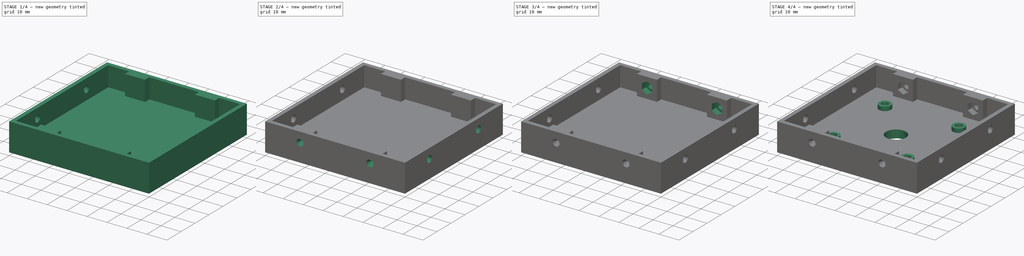
[diagram: build sequence overview — one tinted view per stage of 4, left to right]
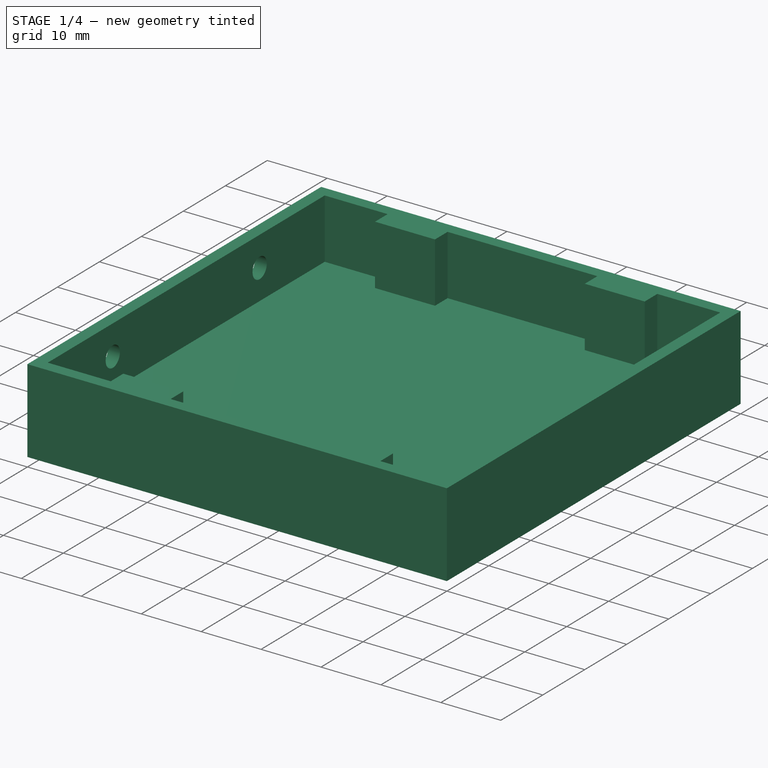
[diagram: stage 1 of 4 — iso view after this stage's code; geometry added in this stage tinted green]
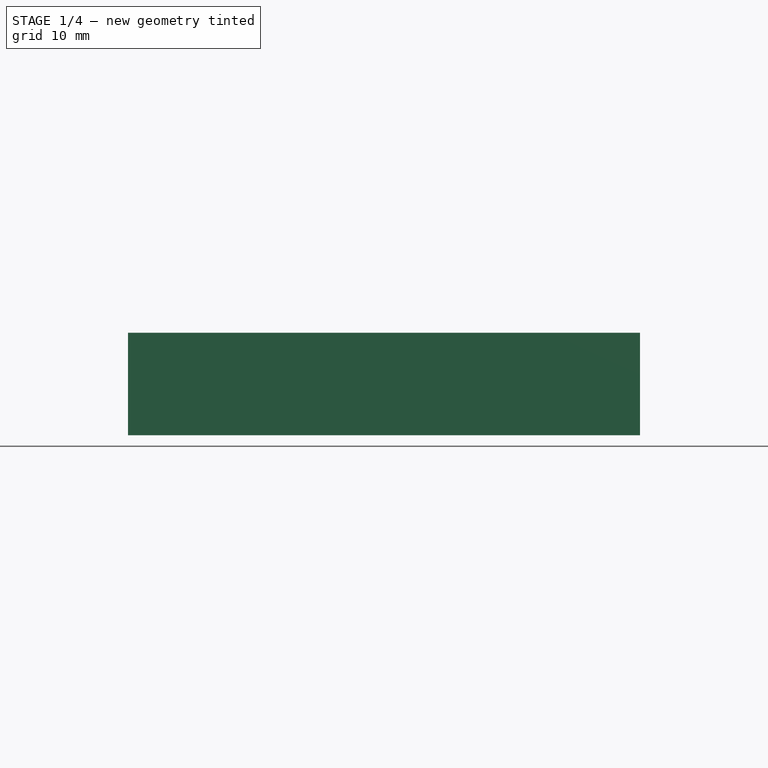
[diagram: stage 1 of 4 — front view after this stage's code; geometry added in this stage tinted green]
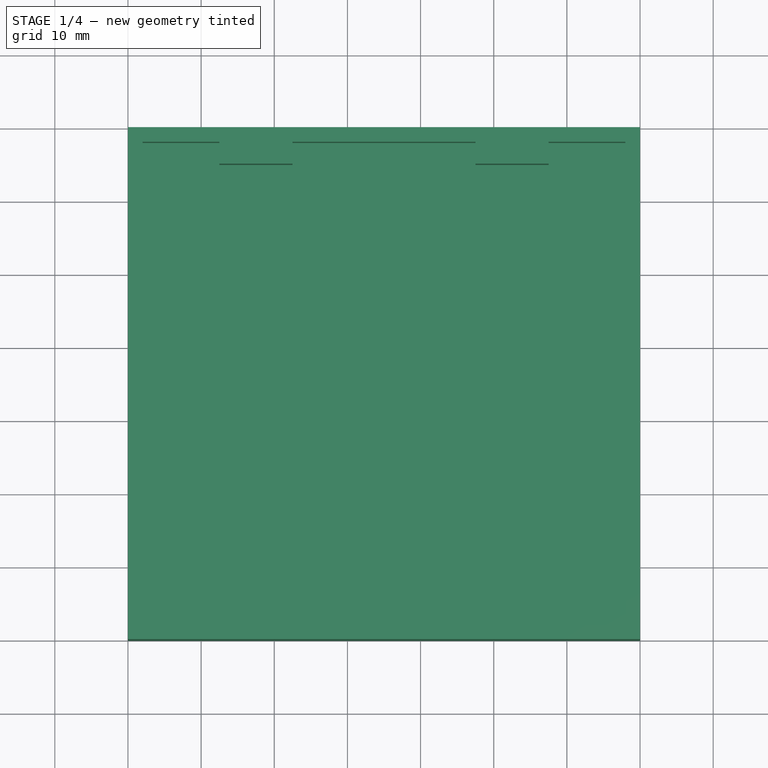
[diagram: stage 1 of 4 — top view after this stage's code; geometry added in this stage tinted green]
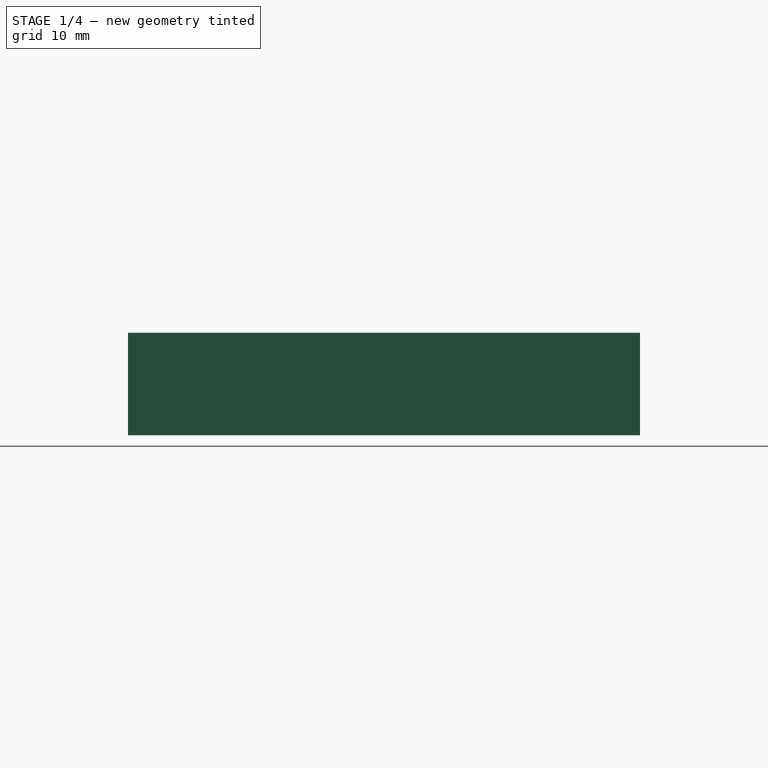
[diagram: stage 1 of 4 — right view after this stage's code; geometry added in this stage tinted green]
FCSTD DOCUMENT  (FreeCAD 0.16R5351 (Git))
Label: MotorControlChassisB
License: All rights reserved
LicenseURL: http://en.wikipedia.org/wiki/All_rights_reserved
objects: Sketcher::SketchObject×12, PartDesign::Pocket×9, PartDesign::Pad×3
note: 36 computed .brp shape members not serialized (recipe doc carries the construction recipe); baked Part::Feature solids carry a one-line shape summary decoded from their .brp

FEATURE [Sketcher::SketchObject] Sketch
  sketch-geometry (4):
    g0: LineSegment StartX=0 StartY=0 StartZ=0 EndX=70 EndY=0 EndZ=0
    g1: LineSegment StartX=70 StartY=0 StartZ=0 EndX=70 EndY=70 EndZ=0
    g2: LineSegment StartX=70 StartY=70 StartZ=0 EndX=0 EndY=70 EndZ=0
    g3: LineSegment StartX=0 StartY=70 StartZ=0 EndX=0 EndY=0 EndZ=0
  constraints (11):
    c: Coincident(g0,g1)
    c: Coincident(g1,g2)
    c: Coincident(g2,g3)
    c: Coincident(g3,g0)
    c: Horizontal(g0)
    c: Horizontal(g2)
    c: Vertical(g1)
    c: Vertical(g3)
    c: Coincident(g0,g-1)
    c: DistanceX(g2) = -70
    c: DistanceY(g3) = -70
FEATURE [PartDesign::Pad] Pad
  Length = 4
  Length2 = 100
  Sketch = -> Sketch
  Type = 0
FEATURE [Sketcher::SketchObject] Sketch001
  Placement = pos=(0,0,4) rot=(0,0,1;0rad)
  Support = -> Pad [Face6]
  sketch-geometry (28):
    g0: LineSegment StartX=0 StartY=0 StartZ=0 EndX=70 EndY=0 EndZ=0
    g1: LineSegment StartX=70 StartY=0 StartZ=0 EndX=70 EndY=70 EndZ=0
    g2: LineSegment StartX=70 StartY=70 StartZ=0 EndX=0 EndY=70 EndZ=0
    g3: LineSegment StartX=0 StartY=70 StartZ=0 EndX=0 EndY=0 EndZ=0
    g4: LineSegment StartX=2 StartY=68 StartZ=0 EndX=2 EndY=2 EndZ=0
    g5: LineSegment StartX=68 StartY=2 StartZ=0 EndX=68 EndY=68 EndZ=0
    g6: LineSegment StartX=2 StartY=68 StartZ=0 EndX=12.5 EndY=68 EndZ=0
    g7: LineSegment StartX=12.5 StartY=68 StartZ=0 EndX=12.5 EndY=65 EndZ=0
    g8: LineSegment StartX=12.5 StartY=65 StartZ=0 EndX=22.5 EndY=65 EndZ=0
    g9: LineSegment StartX=22.5 StartY=65 StartZ=0 EndX=22.5 EndY=68 EndZ=0
    g10: LineSegment StartX=22.5 StartY=68 StartZ=0 EndX=47.5 EndY=68 EndZ=0
    g11: LineSegment StartX=47.5 StartY=68 StartZ=0 EndX=47.5 EndY=65 EndZ=0
    g12: LineSegment StartX=47.5 StartY=65 StartZ=0 EndX=57.5 EndY=65 EndZ=0
    g13: LineSegment StartX=57.5 StartY=65 StartZ=0 EndX=57.5 EndY=68 EndZ=0
    g14: LineSegment StartX=57.5 StartY=68 StartZ=0 EndX=68 EndY=68 EndZ=0
    g15: LineSegment StartX=2 StartY=2 StartZ=0 EndX=12.5 EndY=2 EndZ=0
    g16: LineSegment StartX=12.5 StartY=2 StartZ=0 EndX=12.5 EndY=5 EndZ=0
    g17: LineSegment StartX=12.5 StartY=5 StartZ=0 EndX=22.5 EndY=5 EndZ=0
    g18: LineSegment StartX=22.5 StartY=5 StartZ=0 EndX=22.5 EndY=2 EndZ=0
    g19: LineSegment StartX=22.5 StartY=2 StartZ=0 EndX=47.5 EndY=2 EndZ=0
    g20: LineSegment StartX=47.5 StartY=2 StartZ=0 EndX=47.5 EndY=5 EndZ=0
    g21: LineSegment StartX=47.5 StartY=5 StartZ=0 EndX=57.5 EndY=5 EndZ=0
    g22: LineSegment StartX=57.5 StartY=5 StartZ=0 EndX=57.5 EndY=2 EndZ=0
    g23: LineSegment StartX=57.5 StartY=2 StartZ=0 EndX=68 EndY=2 EndZ=0
    g24: LineSegment [constr] StartX=12.5 StartY=2 StartZ=0 EndX=17.5 EndY=2 EndZ=0
    g25: LineSegment [constr] StartX=17.5 StartY=2 StartZ=0 EndX=22.5 EndY=2 EndZ=0
    g26: LineSegment [constr] StartX=47.5 StartY=2 StartZ=0 EndX=52.5 EndY=2 EndZ=0
    g27: LineSegment [constr] StartX=52.5 StartY=2 StartZ=0 EndX=57.5 EndY=2 EndZ=0
  constraints (81):
    c: Coincident(g0,g1)
    c: Coincident(g1,g2)
    c: Coincident(g2,g3)
    c: Coincident(g3,g0)
    c: Horizontal(g0)
    c: Horizontal(g2)
    c: Vertical(g1)
    c: Vertical(g3)
    c: Coincident(g0,g-1)
    c: Vertical(g4)
    c: Vertical(g5)
    c: DistanceX(g4) = 2
    c: DistanceY(g4) = 2
    c: DistanceY(g5,g1) = 2
    c: DistanceX(g5,g1) = 2
    c: DistanceY(g3) = -70
    c: DistanceX(g0) = 70
    c: Coincident(g4,g6)
    c: Horizontal(g6)
    c: Coincident(g6,g7)
    c: Vertical(g7)
    c: Coincident(g7,g8)
    c: Horizontal(g8)
    c: Coincident(g8,g9)
    c: Vertical(g9)
    c: Coincident(g9,g10)
    c: Horizontal(g10)
    c: Coincident(g10,g11)
    c: Vertical(g11)
    c: Coincident(g11,g12)
    c: Horizontal(g12)
    c: Coincident(g12,g13)
    c: Vertical(g13)
    c: Coincident(g13,g14)
    c: Coincident(g14,g5)
    c: Horizontal(g14)
    c: Coincident(g4,g15)
    c: Horizontal(g15)
    c: Coincident(g15,g16)
    c: Vertical(g16)
    c: Coincident(g16,g17)
    c: Horizontal(g17)
    c: Coincident(g17,g18)
    c: Vertical(g18)
    c: Coincident(g18,g19)
    c: Horizontal(g19)
    c: Coincident(g19,g20)
    c: Vertical(g20)
    c: Coincident(g20,g21)
    c: Horizontal(g21)
    c: Coincident(g21,g22)
    c: Vertical(g22)
    c: Coincident(g22,g23)
    c: Coincident(g23,g5)
    c: Horizontal(g23)
    c: Equal(g13,g11)
    c: Equal(g11,g9)
    c: Equal(g9,g7)
    c: Equal(g7,g16)
    c: Equal(g16,g18)
    c: Equal(g18,g20)
    c: Equal(g20,g22)
    c: Equal(g12,g21)
    c: Equal(g21,g17)
    c: Equal(g17,g8)
    c: Equal(g6,g14)
    c: Equal(g14,g23)
    c: Equal(g23,g15)
    c: Coincident(g15,g24)
    c: Coincident(g24,g25)
    c: Coincident(g25,g18)
    c: Horizontal(g25)
    c: Coincident(g19,g26)
    c: Horizontal(g26)
    c: Coincident(g26,g27)
    c: Coincident(g27,g22)
    c: Equal(g27,g26)
    c: Equal(g25,g24)
    c: DistanceX(g24,g26) = 35
    c: DistanceX(g8) = 10
    c: DistanceY(g7) = -3
FEATURE [PartDesign::Pad] Pad001
  Length = 10
  Length2 = 100
  Sketch = -> Sketch001
  Type = 0
FEATURE [Sketcher::SketchObject] Sketch002
  Placement = pos=(2,0,0) rot=(0.57735,0.57735,0.57735;2.0944rad)
  Support = -> Pad001 [Face12]
  sketch-geometry (5):
    g0: LineSegment [constr] StartX=0 StartY=9 StartZ=0 EndX=17.5 EndY=9 EndZ=0
    g1: LineSegment [constr] StartX=17.5 StartY=9 StartZ=0 EndX=52.5 EndY=9 EndZ=0
    g2: LineSegment [constr] StartX=52.5 StartY=9 StartZ=0 EndX=70 EndY=9 EndZ=0
    g3: Circle CenterX=17.5 CenterY=9 CenterZ=0 NormalX=0 NormalY=0 NormalZ=1 Radius=1.7
    g4: Circle CenterX=52.5 CenterY=9 CenterZ=0 NormalX=0 NormalY=0 NormalZ=1 Radius=1.7
  constraints (14):
    c: PointOnObject(g0,g-2)
    c: Horizontal(g0)
    c: Coincident(g0,g1)
    c: Horizontal(g1)
    c: Coincident(g1,g2)
    c: Horizontal(g2)
    c: Equal(g2,g0)
    c: DistanceX(g2) = 70
    c: DistanceX(g1) = 35
    c: Coincident(g3,g0)
    c: Coincident(g4,g1)
    c: Equal(g4,g3)
    c: Radius(g3) = 1.7
    c: DistanceY(g0) = 9
FEATURE [PartDesign::Pocket] Pocket
  Length = 2
  Sketch = -> Sketch002
  Type = 0
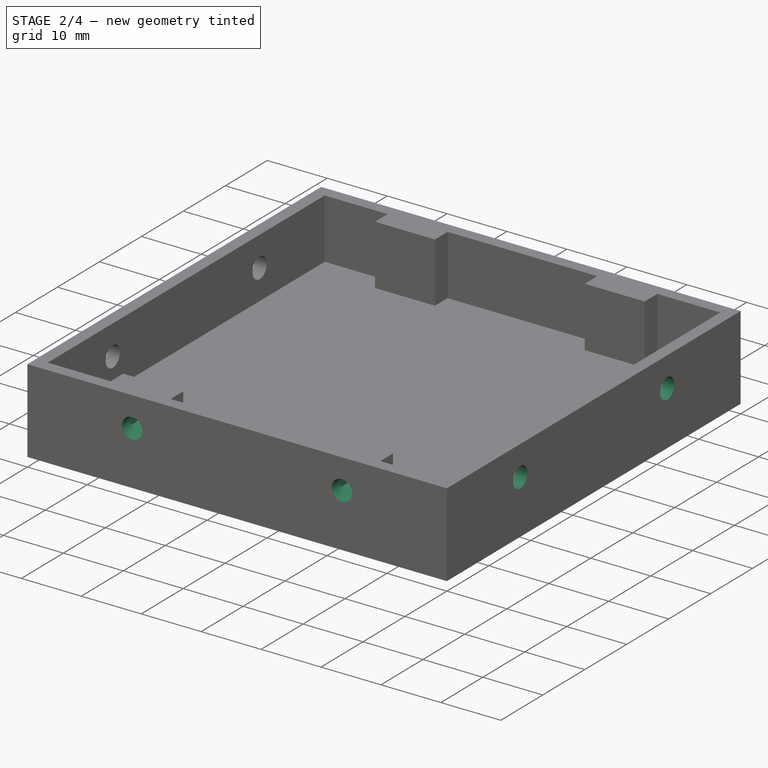
[diagram: stage 2 of 4 — iso view after this stage's code; geometry added in this stage tinted green]
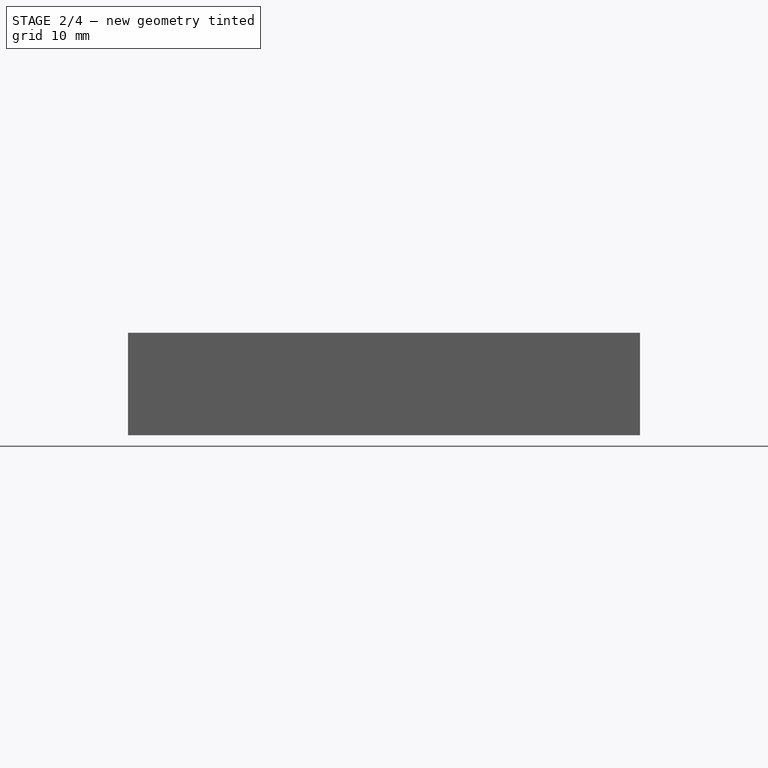
[diagram: stage 2 of 4 — front view after this stage's code; geometry added in this stage tinted green]
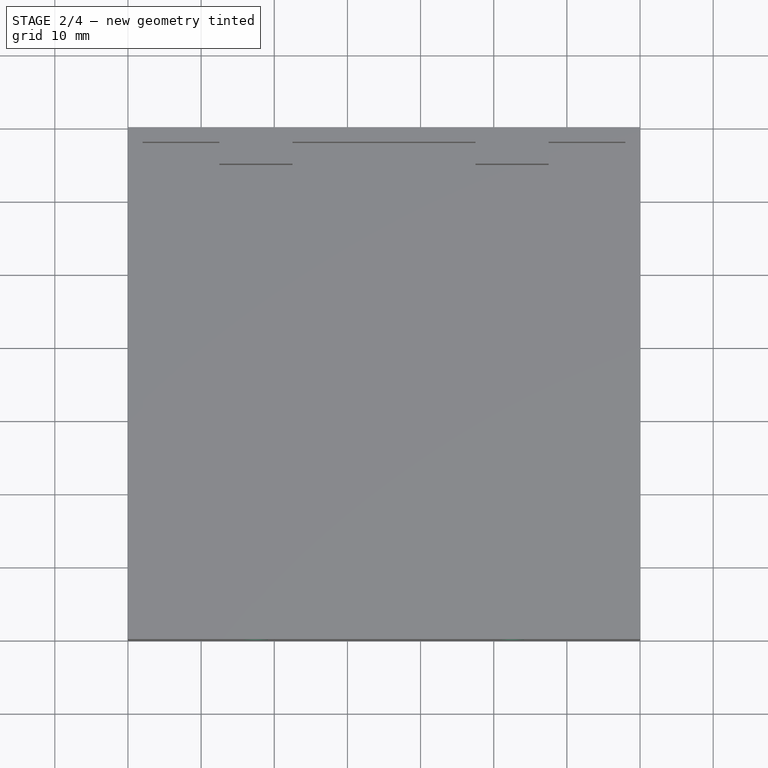
[diagram: stage 2 of 4 — top view after this stage's code; geometry added in this stage tinted green]
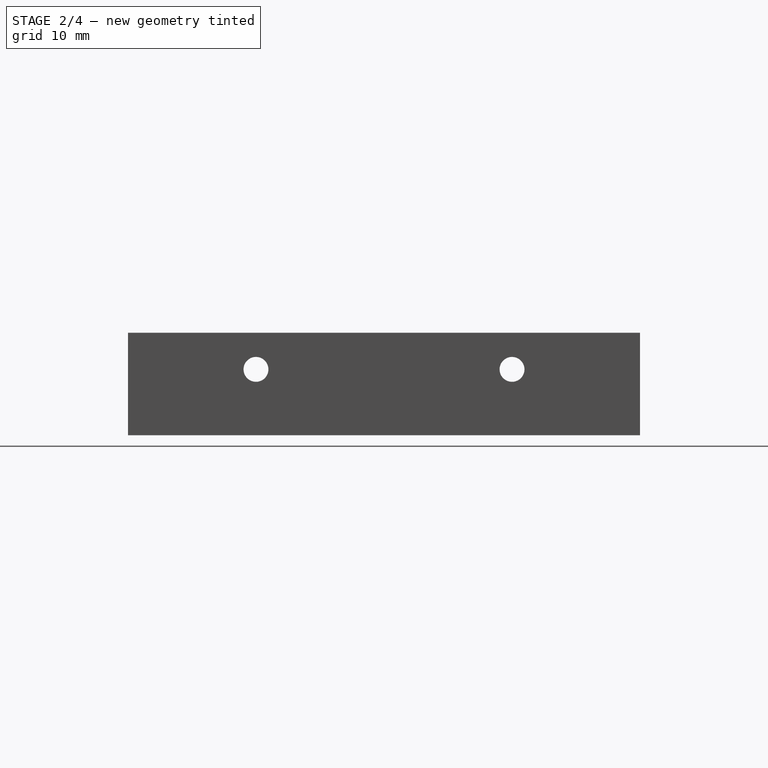
[diagram: stage 2 of 4 — right view after this stage's code; geometry added in this stage tinted green]
FEATURE [Sketcher::SketchObject] Sketch003
  Placement = pos=(68,0,0) rot=(0.57735,-0.57735,-0.57735;2.0944rad)
  Support = -> Pocket [Face24]
  sketch-geometry (5):
    g0: LineSegment [constr] StartX=-70 StartY=9 StartZ=0 EndX=-52.5 EndY=9 EndZ=0
    g1: LineSegment [constr] StartX=-52.5 StartY=9 StartZ=0 EndX=-17.5 EndY=9 EndZ=0
    g2: LineSegment [constr] StartX=-17.5 StartY=9 StartZ=0 EndX=0 EndY=9 EndZ=0
    g3: Circle CenterX=-52.5 CenterY=9 CenterZ=0 NormalX=0 NormalY=0 NormalZ=1 Radius=1.7
    g4: Circle CenterX=-17.5 CenterY=9 CenterZ=0 NormalX=0 NormalY=0 NormalZ=1 Radius=1.7
  constraints (14):
    c: Horizontal(g0)
    c: Coincident(g0,g1)
    c: Horizontal(g1)
    c: Coincident(g1,g2)
    c: Horizontal(g2)
    c: Equal(g2,g0)
    c: DistanceX(g1) = 35
    c: Coincident(g3,g0)
    c: Coincident(g4,g1)
    c: Equal(g4,g3)
    c: Radius(g3) = 1.7
    c: DistanceY(g0) = 9
    c: PointOnObject(g2,g-2)
    c: DistanceX(g0,g2) = 70
FEATURE [PartDesign::Pocket] Pocket001
  Length = 2
  Sketch = -> Sketch003
  Type = 0
FEATURE [Sketcher::SketchObject] Sketch004
  Placement = pos=(0,5,0) rot=(0,0.707107,0.707107;3.14159rad)
  Support = -> Pocket001 [Face23]
  sketch-geometry (17):
    g0: LineSegment [constr] StartX=0 StartY=9 StartZ=0 EndX=-17.5 EndY=9 EndZ=0
    g1: LineSegment [constr] StartX=-17.5 StartY=9 StartZ=0 EndX=-52.5 EndY=9 EndZ=0
    g2: LineSegment [constr] StartX=-52.5 StartY=9 StartZ=0 EndX=-70 EndY=9 EndZ=0
    g3: LineSegment StartX=-49.9019 StartY=10.5 StartZ=0 EndX=-52.5 EndY=12 EndZ=0
    g4: LineSegment StartX=-52.5 StartY=12 StartZ=0 EndX=-55.0981 EndY=10.5 EndZ=0
    g5: LineSegment StartX=-55.0981 StartY=10.5 StartZ=0 EndX=-55.0981 EndY=7.5 EndZ=0
    g6: LineSegment StartX=-55.0981 StartY=7.5 StartZ=0 EndX=-52.5 EndY=6 EndZ=0
    g7: LineSegment StartX=-52.5 StartY=6 StartZ=0 EndX=-49.9019 EndY=7.5 EndZ=0
    g8: LineSegment StartX=-49.9019 StartY=7.5 StartZ=0 EndX=-49.9019 EndY=10.5 EndZ=0
    g9: Circle [constr] CenterX=-52.5 CenterY=9 CenterZ=0 NormalX=0 NormalY=0 NormalZ=1 Radius=3
    g10: LineSegment StartX=-14.9019 StartY=10.5 StartZ=0 EndX=-17.5 EndY=12 EndZ=0
    g11: LineSegment StartX=-17.5 StartY=12 StartZ=0 EndX=-20.0981 EndY=10.5 EndZ=0
    g12: LineSegment StartX=-20.0981 StartY=10.5 StartZ=0 EndX=-20.0981 EndY=7.5 EndZ=0
    g13: LineSegment StartX=-20.0981 StartY=7.5 StartZ=0 EndX=-17.5 EndY=6 EndZ=0
    g14: LineSegment StartX=-17.5 StartY=6 StartZ=0 EndX=-14.9019 EndY=7.5 EndZ=0
    g15: LineSegment StartX=-14.9019 StartY=7.5 StartZ=0 EndX=-14.9019 EndY=10.5 EndZ=0
    g16: Circle [constr] CenterX=-17.5 CenterY=9 CenterZ=0 NormalX=0 NormalY=0 NormalZ=1 Radius=3
  constraints (42):
    c: PointOnObject(g0,g-2)
    c: Horizontal(g0)
    c: Coincident(g0,g1)
    c: Horizontal(g1)
    c: Coincident(g1,g2)
    c: Horizontal(g2)
    c: Equal(g0,g2)
    c: DistanceX(g1) = -35
    c: DistanceX(g2,g0) = 70
    c: DistanceY(g0) = 9
    c: Coincident(g3,g4)
    c: Coincident(g4,g5)
    c: Coincident(g5,g6)
    c: Coincident(g6,g7)
    c: Coincident(g7,g8)
    c: Coincident(g8,g3)
    c: Equal(g3, g4-g8) x5
    c: PointOnObject(g3,g9)
    c: PointOnObject(g4,g9)
    c: PointOnObject(g5,g9)
    c: PointOnObject(g6,g9)
    c: PointOnObject(g7,g9)
    c: PointOnObject(g8,g9)
    c: Coincident(g9,g1)
    c: Coincident(g10,g11)
    c: Coincident(g11,g12)
    c: Coincident(g12,g13)
    c: Coincident(g13,g14)
    c: Coincident(g14,g15)
    c: Coincident(g15,g10)
    c: Equal(g10, g11-g15) x5
    c: PointOnObject(g10,g16)
    c: PointOnObject(g11,g16)
    c: PointOnObject(g12,g16)
    c: PointOnObject(g13,g16)
    c: PointOnObject(g14,g16)
    c: PointOnObject(g15,g16)
    c: Coincident(g16,g0)
    c: Vertical(g12)
    c: Vertical(g5)
    c: Equal(g9,g16)
    c: Radius(g9) = 3
FEATURE [PartDesign::Pocket] Pocket002
  Length = 3
  Sketch = -> Sketch004
  Type = 0
FEATURE [Sketcher::SketchObject] Sketch005
  Placement = pos=(0,2,0) rot=(0,0.707107,0.707107;3.14159rad)
  Support = -> Pocket002 [Face49]
  sketch-geometry (5):
    g0: LineSegment [constr] StartX=0 StartY=9 StartZ=0 EndX=-17.5 EndY=9 EndZ=0
    g1: LineSegment [constr] StartX=-17.5 StartY=9 StartZ=0 EndX=-52.5 EndY=9 EndZ=0
    g2: LineSegment [constr] StartX=-52.5 StartY=9 StartZ=0 EndX=-70 EndY=9 EndZ=0
    g3: Circle CenterX=-52.5 CenterY=9 CenterZ=0 NormalX=0 NormalY=0 NormalZ=1 Radius=1.7
    g4: Circle CenterX=-17.5 CenterY=9 CenterZ=0 NormalX=0 NormalY=0 NormalZ=1 Radius=1.7
  constraints (14):
    c: PointOnObject(g0,g-2)
    c: Horizontal(g0)
    c: Coincident(g0,g1)
    c: Horizontal(g1)
    c: Coincident(g1,g2)
    c: Horizontal(g2)
    c: Equal(g0,g2)
    c: DistanceX(g1) = -35
    c: DistanceX(g2,g0) = 70
    c: DistanceY(g0) = 9
    c: Coincident(g3,g1)
    c: Coincident(g4,g0)
    c: Equal(g3,g4)
    c: Radius(g3) = 1.7
FEATURE [PartDesign::Pocket] Pocket003
  Length = 2
  Sketch = -> Sketch005
  Type = 0
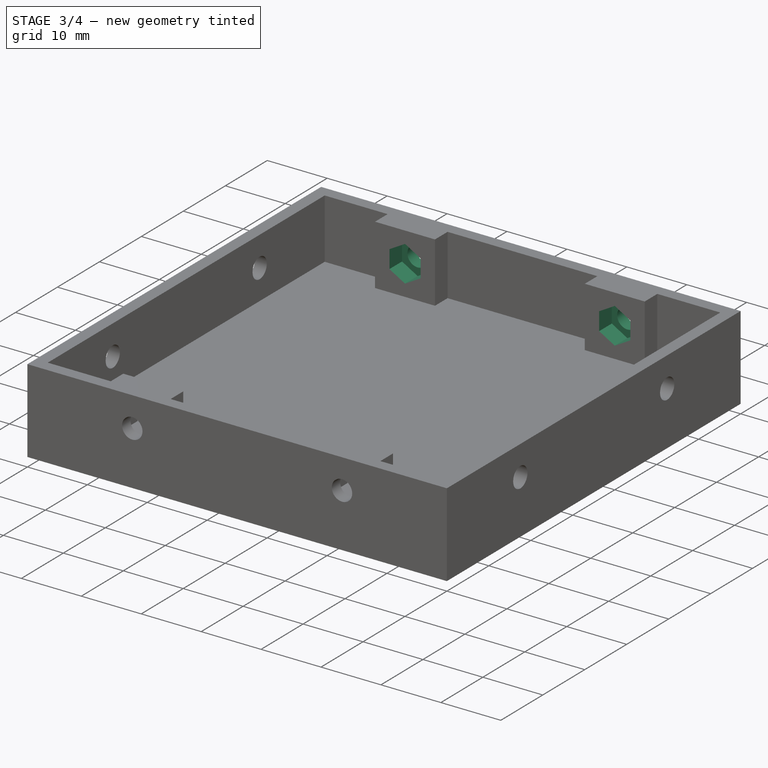
[diagram: stage 3 of 4 — iso view after this stage's code; geometry added in this stage tinted green]
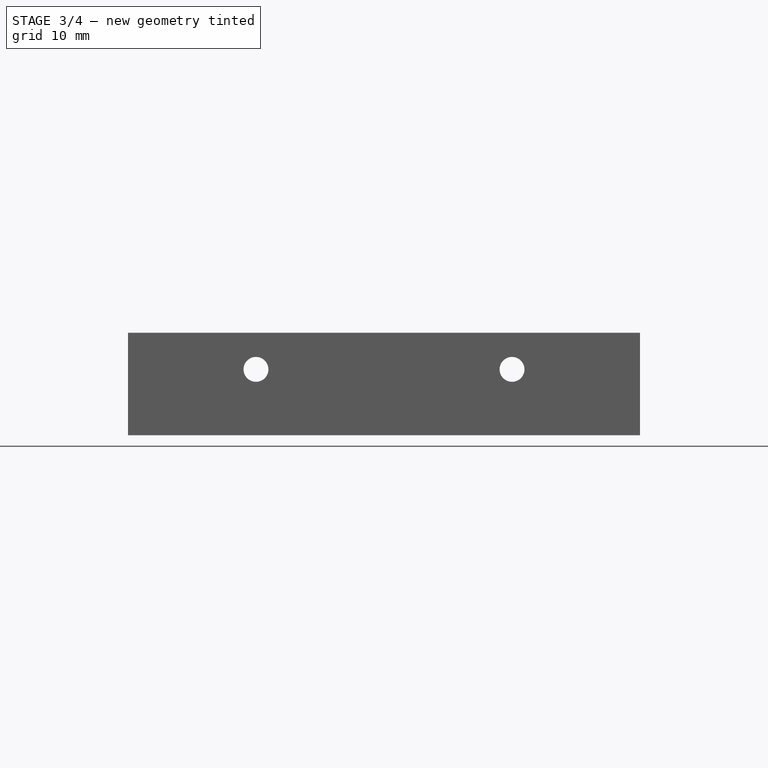
[diagram: stage 3 of 4 — front view after this stage's code; geometry added in this stage tinted green]
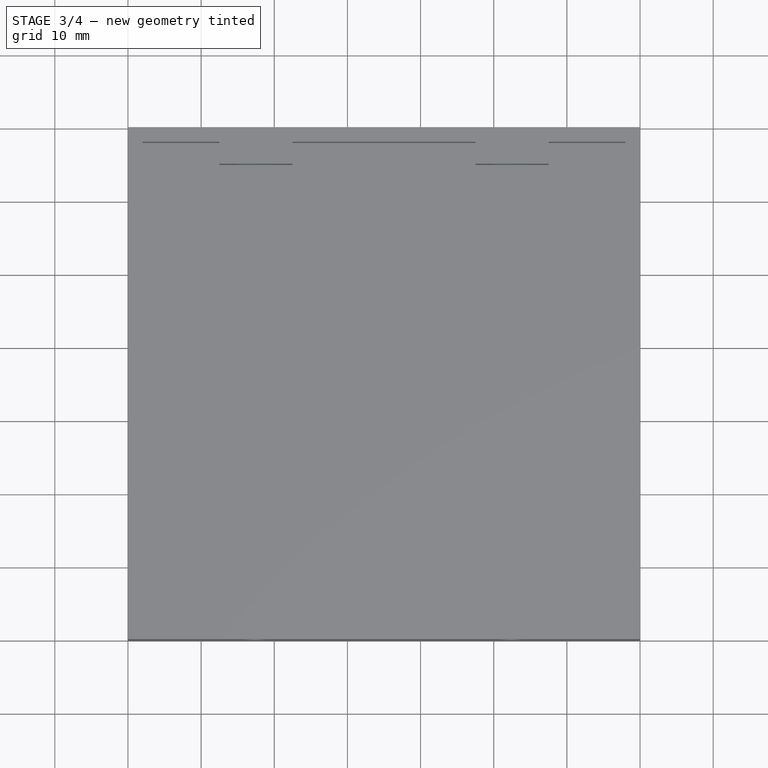
[diagram: stage 3 of 4 — top view after this stage's code; geometry added in this stage tinted green]
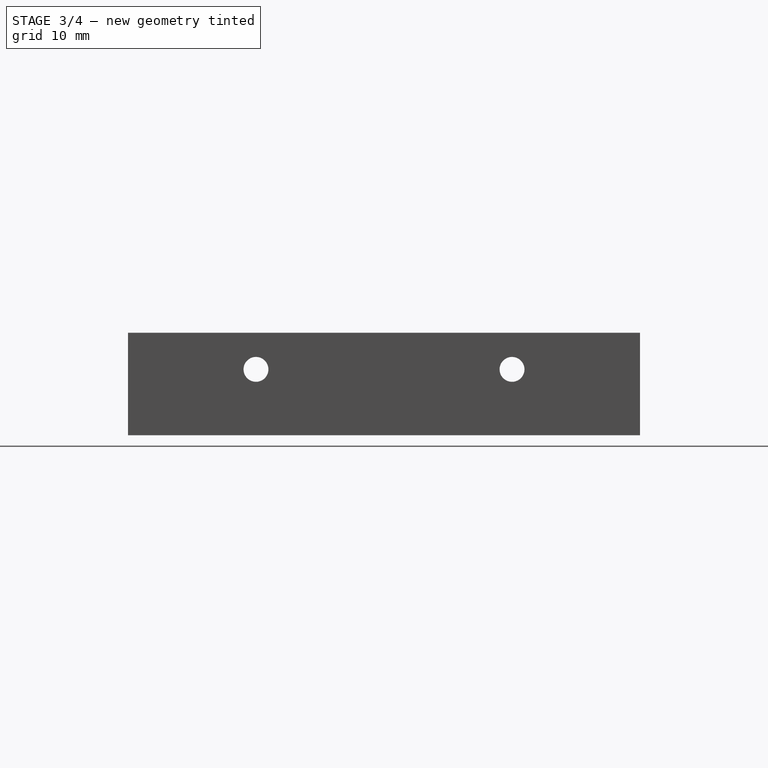
[diagram: stage 3 of 4 — right view after this stage's code; geometry added in this stage tinted green]
FEATURE [Sketcher::SketchObject] Sketch006
  Placement = pos=(0,65,0) rot=(1,0,0;1.5708rad)
  Support = -> Pocket003 [Face35]
  sketch-geometry (17):
    g0: LineSegment [constr] StartX=0 StartY=9 StartZ=0 EndX=17.5 EndY=9 EndZ=0
    g1: LineSegment [constr] StartX=17.5 StartY=9 StartZ=0 EndX=52.5 EndY=9 EndZ=0
    g2: LineSegment [constr] StartX=52.5 StartY=9 StartZ=0 EndX=70 EndY=9 EndZ=0
    g3: LineSegment StartX=20.0981 StartY=10.5 StartZ=0 EndX=17.5 EndY=12 EndZ=0
    g4: LineSegment StartX=17.5 StartY=12 StartZ=0 EndX=14.9019 EndY=10.5 EndZ=0
    g5: LineSegment StartX=14.9019 StartY=10.5 StartZ=0 EndX=14.9019 EndY=7.5 EndZ=0
    g6: LineSegment StartX=14.9019 StartY=7.5 StartZ=0 EndX=17.5 EndY=6 EndZ=0
    g7: LineSegment StartX=17.5 StartY=6 StartZ=0 EndX=20.0981 EndY=7.5 EndZ=0
    g8: LineSegment StartX=20.0981 StartY=7.5 StartZ=0 EndX=20.0981 EndY=10.5 EndZ=0
    g9: Circle [constr] CenterX=17.5 CenterY=9 CenterZ=0 NormalX=0 NormalY=0 NormalZ=1 Radius=3
    g10: LineSegment StartX=55.0981 StartY=10.5 StartZ=0 EndX=52.5 EndY=12 EndZ=0
    g11: LineSegment StartX=52.5 StartY=12 StartZ=0 EndX=49.9019 EndY=10.5 EndZ=0
    g12: LineSegment StartX=49.9019 StartY=10.5 StartZ=0 EndX=49.9019 EndY=7.5 EndZ=0
    g13: LineSegment StartX=49.9019 StartY=7.5 StartZ=0 EndX=52.5 EndY=6 EndZ=0
    g14: LineSegment StartX=52.5 StartY=6 StartZ=0 EndX=55.0981 EndY=7.5 EndZ=0
    g15: LineSegment StartX=55.0981 StartY=7.5 StartZ=0 EndX=55.0981 EndY=10.5 EndZ=0
    g16: Circle [constr] CenterX=52.5 CenterY=9 CenterZ=0 NormalX=0 NormalY=0 NormalZ=1 Radius=3
  constraints (42):
    c: PointOnObject(g0,g-2)
    c: Horizontal(g0)
    c: Coincident(g0,g1)
    c: Horizontal(g1)
    c: Coincident(g1,g2)
    c: Horizontal(g2)
    c: Equal(g2,g0)
    c: DistanceX(g1) = 35
    c: DistanceX(g0,g2) = 70
    c: Coincident(g3,g4)
    c: Coincident(g4,g5)
    c: Coincident(g5,g6)
    c: Coincident(g6,g7)
    c: Coincident(g7,g8)
    c: Coincident(g8,g3)
    c: Equal(g3, g4-g8) x5
    c: PointOnObject(g3,g9)
    c: PointOnObject(g4,g9)
    c: PointOnObject(g5,g9)
    c: PointOnObject(g6,g9)
    c: PointOnObject(g7,g9)
    c: PointOnObject(g8,g9)
    c: Coincident(g9,g0)
    c: Coincident(g10,g11)
    c: Coincident(g11,g12)
    c: Coincident(g12,g13)
    c: Coincident(g13,g14)
    c: Coincident(g14,g15)
    c: Coincident(g15,g10)
    c: Equal(g10, g11-g15) x5
    c: PointOnObject(g10,g16)
    c: PointOnObject(g11,g16)
    c: PointOnObject(g12,g16)
    c: PointOnObject(g13,g16)
    c: PointOnObject(g14,g16)
    c: PointOnObject(g15,g16)
    c: Coincident(g16,g1)
    c: Vertical(g12)
    c: Vertical(g5)
    c: Equal(g9,g16)
    c: Radius(g9) = 3
    c: DistanceY(g0) = 9
FEATURE [PartDesign::Pocket] Pocket004
  Length = 3
  Sketch = -> Sketch006
  Type = 0
FEATURE [Sketcher::SketchObject] Sketch007
  Placement = pos=(0,68,0) rot=(1,0,0;1.5708rad)
  Support = -> Pocket004 [Face65]
  sketch-geometry (5):
    g0: LineSegment [constr] StartX=0 StartY=9 StartZ=0 EndX=17.5 EndY=9 EndZ=0
    g1: LineSegment [constr] StartX=17.5 StartY=9 StartZ=0 EndX=52.5 EndY=9 EndZ=0
    g2: LineSegment [constr] StartX=52.5 StartY=9 StartZ=0 EndX=70 EndY=9 EndZ=0
    g3: Circle CenterX=17.5 CenterY=9 CenterZ=0 NormalX=0 NormalY=0 NormalZ=1 Radius=1.7
    g4: Circle CenterX=52.5 CenterY=9 CenterZ=0 NormalX=0 NormalY=0 NormalZ=1 Radius=1.7
  constraints (14):
    c: PointOnObject(g0,g-2)
    c: Horizontal(g0)
    c: Coincident(g0,g1)
    c: Horizontal(g1)
    c: Coincident(g1,g2)
    c: Horizontal(g2)
    c: Equal(g2,g0)
    c: DistanceX(g1) = 35
    c: DistanceX(g0,g2) = 70
    c: Coincident(g3,g0)
    c: Coincident(g4,g1)
    c: Equal(g3,g4)
    c: Radius(g3) = 1.7
    c: DistanceY(g0) = 9
FEATURE [PartDesign::Pocket] Pocket005
  Length = 2
  Sketch = -> Sketch007
  Type = 0
FEATURE [Sketcher::SketchObject] Sketch008
  Placement = pos=(0,0,0) rot=(1,0,0;3.14159rad)
  Support = -> Pocket005 [Face1]
  sketch-geometry (36):
    g0: LineSegment [constr] StartX=16.5 StartY=-16.5 StartZ=0 EndX=53.5 EndY=-16.5 EndZ=0
    g1: LineSegment [constr] StartX=53.5 StartY=-16.5 StartZ=0 EndX=53.5 EndY=-53.5 EndZ=0
    g2: LineSegment [constr] StartX=53.5 StartY=-53.5 StartZ=0 EndX=16.5 EndY=-53.5 EndZ=0
    g3: LineSegment [constr] StartX=16.5 StartY=-53.5 StartZ=0 EndX=16.5 EndY=-16.5 EndZ=0
    g4: LineSegment [constr] StartX=16.5 StartY=-16.5 StartZ=0 EndX=16.5 EndY=0 EndZ=0
    g5: LineSegment [constr] StartX=16.5 StartY=-53.5 StartZ=0 EndX=16.5 EndY=-70 EndZ=0
    g6: LineSegment [constr] StartX=16.5 StartY=-53.5 StartZ=0 EndX=0 EndY=-53.5 EndZ=0
    g7: LineSegment [constr] StartX=53.5 StartY=-53.5 StartZ=0 EndX=70 EndY=-53.5 EndZ=0
    g8: LineSegment StartX=19.0981 StartY=-15 StartZ=0 EndX=16.5 EndY=-13.5 EndZ=0
    g9: LineSegment StartX=16.5 StartY=-13.5 StartZ=0 EndX=13.9019 EndY=-15 EndZ=0
    g10: LineSegment StartX=13.9019 StartY=-15 StartZ=0 EndX=13.9019 EndY=-18 EndZ=0
    g11: LineSegment StartX=13.9019 StartY=-18 StartZ=0 EndX=16.5 EndY=-19.5 EndZ=0
    g12: LineSegment StartX=16.5 StartY=-19.5 StartZ=0 EndX=19.0981 EndY=-18 EndZ=0
    g13: LineSegment StartX=19.0981 StartY=-18 StartZ=0 EndX=19.0981 EndY=-15 EndZ=0
    g14: Circle [constr] CenterX=16.5 CenterY=-16.5 CenterZ=0 NormalX=0 NormalY=0 NormalZ=1 Radius=3
    g15: LineSegment StartX=56.0981 StartY=-15 StartZ=0 EndX=53.5 EndY=-13.5 EndZ=0
    g16: LineSegment StartX=53.5 StartY=-13.5 StartZ=0 EndX=50.9019 EndY=-15 EndZ=0
    g17: LineSegment StartX=50.9019 StartY=-15 StartZ=0 EndX=50.9019 EndY=-18 EndZ=0
    g18: LineSegment StartX=50.9019 StartY=-18 StartZ=0 EndX=53.5 EndY=-19.5 EndZ=0
    g19: LineSegment StartX=53.5 StartY=-19.5 StartZ=0 EndX=56.0981 EndY=-18 EndZ=0
    g20: LineSegment StartX=56.0981 StartY=-18 StartZ=0 EndX=56.0981 EndY=-15 EndZ=0
    g21: Circle [constr] CenterX=53.5 CenterY=-16.5 CenterZ=0 NormalX=0 NormalY=0 NormalZ=1 Radius=3
    g22: LineSegment StartX=56.0981 StartY=-55 StartZ=0 EndX=56.0981 EndY=-52 EndZ=0
    g23: LineSegment StartX=56.0981 StartY=-52 StartZ=0 EndX=53.5 EndY=-50.5 EndZ=0
    g24: LineSegment StartX=53.5 StartY=-50.5 StartZ=0 EndX=50.9019 EndY=-52 EndZ=0
    g25: LineSegment StartX=50.9019 StartY=-52 StartZ=0 EndX=50.9019 EndY=-55 EndZ=0
    g26: LineSegment StartX=50.9019 StartY=-55 StartZ=0 EndX=53.5 EndY=-56.5 EndZ=0
    g27: LineSegment StartX=53.5 StartY=-56.5 StartZ=0 EndX=56.0981 EndY=-55 EndZ=0
    g28: Circle [constr] CenterX=53.5 CenterY=-53.5 CenterZ=0 NormalX=0 NormalY=0 NormalZ=1 Radius=3
    g29: LineSegment StartX=19.0981 StartY=-52 StartZ=0 EndX=16.5 EndY=-50.5 EndZ=0
    g30: LineSegment StartX=16.5 StartY=-50.5 StartZ=0 EndX=13.9019 EndY=-52 EndZ=0
    g31: LineSegment StartX=13.9019 StartY=-52 StartZ=0 EndX=13.9019 EndY=-55 EndZ=0
    g32: LineSegment StartX=13.9019 StartY=-55 StartZ=0 EndX=16.5 EndY=-56.5 EndZ=0
    g33: LineSegment StartX=16.5 StartY=-56.5 StartZ=0 EndX=19.0981 EndY=-55 EndZ=0
    g34: LineSegment StartX=19.0981 StartY=-55 StartZ=0 EndX=19.0981 EndY=-52 EndZ=0
    g35: Circle [constr] CenterX=16.5 CenterY=-53.5 CenterZ=0 NormalX=0 NormalY=0 NormalZ=1 Radius=3
  constraints (88):
    c: Coincident(g0,g1)
    c: Coincident(g1,g2)
    c: Coincident(g2,g3)
    c: Coincident(g3,g0)
    c: Horizontal(g0)
    c: Horizontal(g2)
    c: Vertical(g1)
    c: Vertical(g3)
    c: Coincident(g4,g0)
    c: PointOnObject(g4,g-1)
    c: Vertical(g4)
    c: Coincident(g5,g2)
    c: Vertical(g5)
    c: Coincident(g6,g2)
    c: PointOnObject(g6,g-2)
    c: Horizontal(g6)
    c: Coincident(g7,g1)
    c: Horizontal(g7)
    c: Equal(g7,g6)
    c: Equal(g4,g5)
    c: DistanceX(g6,g7) = 70
    c: DistanceY(g5,g4) = 70
    c: DistanceY(g3) = 37
    c: DistanceX(g2) = -37
    c: Coincident(g8,g9)
    c: Coincident(g9,g10)
    c: Coincident(g10,g11)
    c: Coincident(g11,g12)
    c: Coincident(g12,g13)
    c: Coincident(g13,g8)
    c: Equal(g8, g9-g13) x5
    c: PointOnObject(g8,g14)
    c: PointOnObject(g9,g14)
    c: PointOnObject(g10,g14)
    c: PointOnObject(g11,g14)
    c: PointOnObject(g12,g14)
    c: PointOnObject(g13,g14)
    c: Coincident(g14,g0)
    c: Coincident(g15,g16)
    c: Coincident(g16,g17)
    c: Coincident(g17,g18)
    c: Coincident(g18,g19)
    c: Coincident(g19,g20)
    c: Coincident(g20,g15)
    c: Equal(g15, g16-g20) x5
    c: PointOnObject(g15,g21)
    c: PointOnObject(g16,g21)
    c: PointOnObject(g17,g21)
    c: PointOnObject(g18,g21)
    c: PointOnObject(g19,g21)
    c: PointOnObject(g20,g21)
    c: Coincident(g21,g0)
    c: Coincident(g22,g23)
    c: Coincident(g23,g24)
    c: Coincident(g24,g25)
    c: Coincident(g25,g26)
    c: Coincident(g26,g27)
    c: Coincident(g27,g22)
    c: Equal(g22, g23-g27) x5
    c: PointOnObject(g22,g28)
    c: PointOnObject(g23,g28)
    c: PointOnObject(g24,g28)
    c: PointOnObject(g25,g28)
    c: PointOnObject(g26,g28)
    c: PointOnObject(g27,g28)
    c: Coincident(g28,g1)
    c: Coincident(g29,g30)
    c: Coincident(g30,g31)
    c: Coincident(g31,g32)
    c: Coincident(g32,g33)
    c: Coincident(g33,g34)
    c: Coincident(g34,g29)
    c: Equal(g29, g30-g34) x5
    c: PointOnObject(g29,g35)
    c: PointOnObject(g30,g35)
    c: PointOnObject(g31,g35)
    c: PointOnObject(g32,g35)
    c: PointOnObject(g33,g35)
    c: PointOnObject(g34,g35)
    c: Coincident(g35,g2)
    c: Equal(g35,g14)
    c: Equal(g14,g21)
    c: Equal(g21,g28)
    c: Vertical(g10)
    c: Vertical(g31)
    c: Vertical(g25)
    c: Vertical(g17)
    c: Radius(g14) = 3
FEATURE [PartDesign::Pocket] Pocket006
  Length = 3
  Sketch = -> Sketch008
  Type = 0
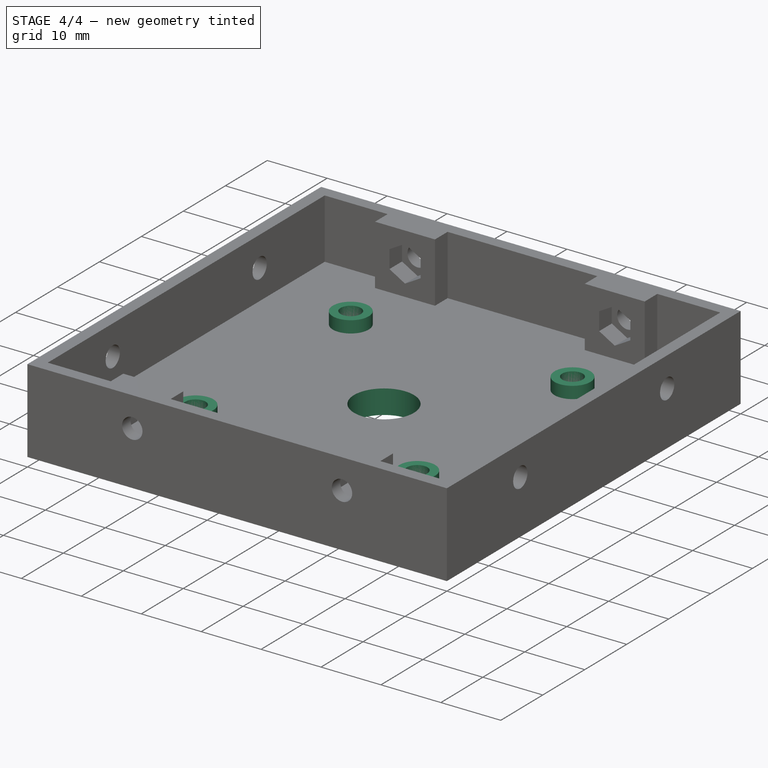
[diagram: stage 4 of 4 — iso view after this stage's code; geometry added in this stage tinted green]
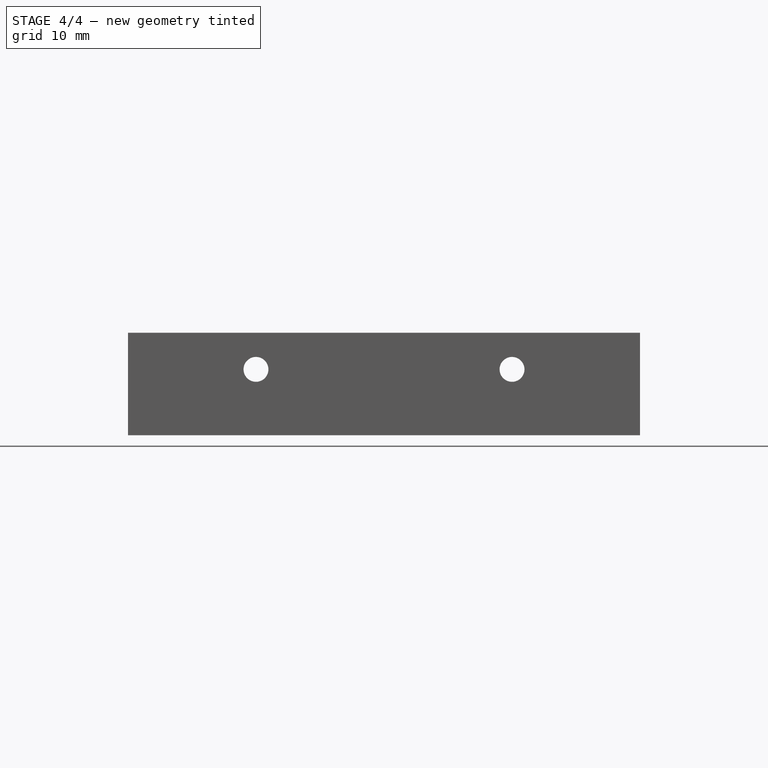
[diagram: stage 4 of 4 — front view after this stage's code; geometry added in this stage tinted green]
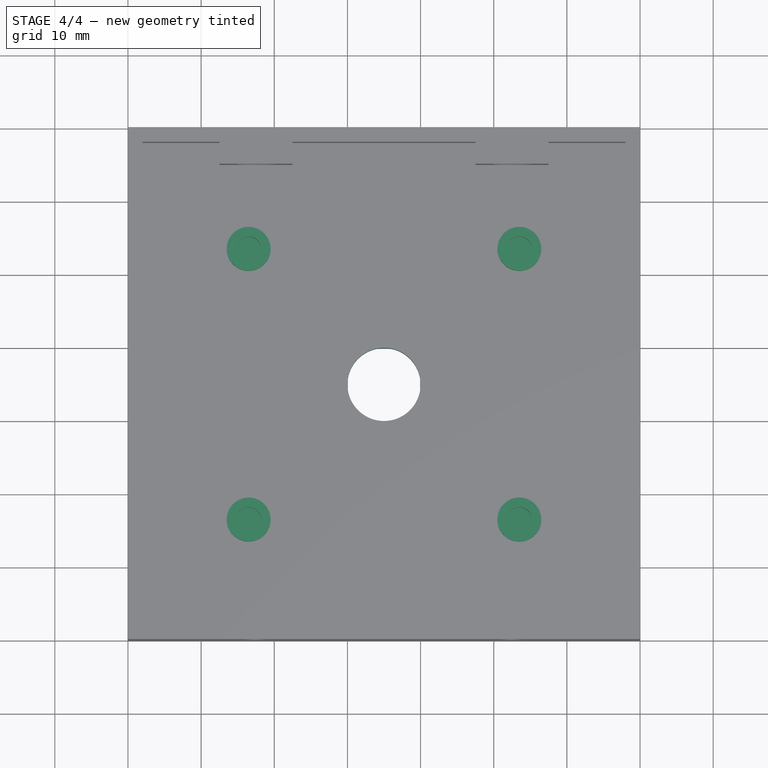
[diagram: stage 4 of 4 — top view after this stage's code; geometry added in this stage tinted green]
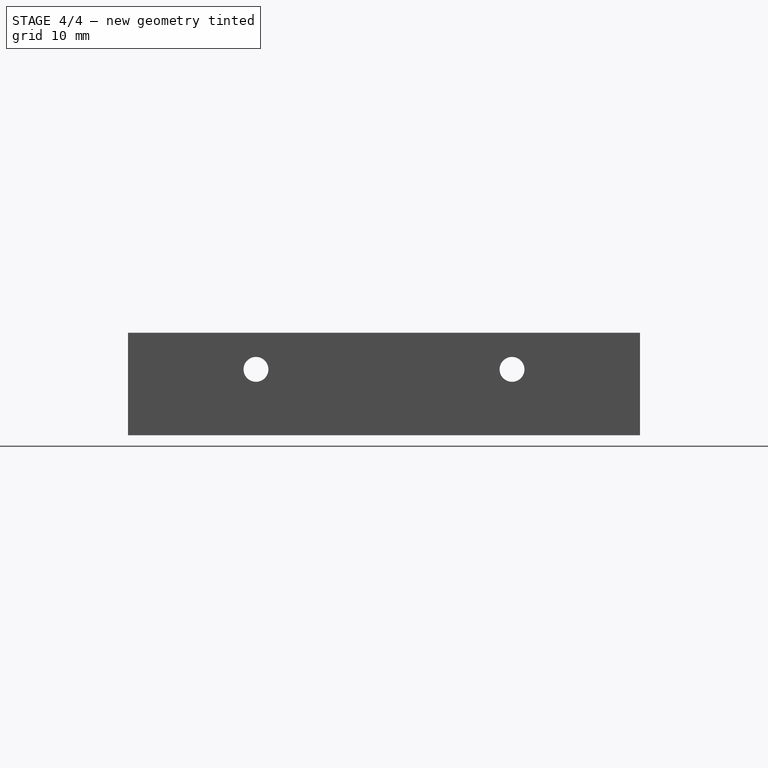
[diagram: stage 4 of 4 — right view after this stage's code; geometry added in this stage tinted green]
FEATURE [Sketcher::SketchObject] Sketch009
  Placement = pos=(0,0,4) rot=(0,0,1;0rad)
  Support = -> Pocket006 [Face71]
  sketch-geometry (12):
    g0: LineSegment [constr] StartX=16.5 StartY=53.5 StartZ=0 EndX=53.5 EndY=53.5 EndZ=0
    g1: LineSegment [constr] StartX=53.5 StartY=53.5 StartZ=0 EndX=53.5 EndY=16.5 EndZ=0
    g2: LineSegment [constr] StartX=53.5 StartY=16.5 StartZ=0 EndX=16.5 EndY=16.5 EndZ=0
    g3: LineSegment [constr] StartX=16.5 StartY=16.5 StartZ=0 EndX=16.5 EndY=53.5 EndZ=0
    g4: LineSegment [constr] StartX=16.5 StartY=53.5 StartZ=0 EndX=16.5 EndY=70 EndZ=0
    g5: LineSegment [constr] StartX=16.5 StartY=16.5 StartZ=0 EndX=16.5 EndY=0 EndZ=0
    g6: LineSegment [constr] StartX=16.5 StartY=16.5 StartZ=0 EndX=0 EndY=16.5 EndZ=0
    g7: LineSegment [constr] StartX=53.5 StartY=16.5 StartZ=0 EndX=70 EndY=16.5 EndZ=0
    g8: Circle CenterX=16.5 CenterY=53.5 CenterZ=0 NormalX=0 NormalY=0 NormalZ=1 Radius=3
    g9: Circle CenterX=53.5 CenterY=53.5 CenterZ=0 NormalX=0 NormalY=0 NormalZ=1 Radius=3
    g10: Circle CenterX=53.5 CenterY=16.5 CenterZ=0 NormalX=0 NormalY=0 NormalZ=1 Radius=3
    g11: Circle CenterX=16.5 CenterY=16.5 CenterZ=0 NormalX=0 NormalY=0 NormalZ=1 Radius=3
  constraints (32):
    c: Coincident(g0,g1)
    c: Coincident(g1,g2)
    c: Coincident(g2,g3)
    c: Coincident(g3,g0)
    c: Horizontal(g0)
    c: Horizontal(g2)
    c: Vertical(g1)
    c: Vertical(g3)
    c: Coincident(g4,g0)
    c: Vertical(g4)
    c: Coincident(g5,g2)
    c: Vertical(g5)
    c: Coincident(g6,g2)
    c: PointOnObject(g6,g-2)
    c: Horizontal(g6)
    c: Coincident(g7,g1)
    c: Horizontal(g7)
    c: Equal(g7,g6)
    c: Equal(g4,g5)
    c: DistanceX(g6,g7) = 70
    c: DistanceY(g5,g4) = 70
    c: DistanceY(g3) = 37
    c: DistanceX(g2) = -37
    c: Coincident(g8,g0)
    c: Coincident(g9,g0)
    c: Coincident(g10,g1)
    c: Coincident(g11,g2)
    c: Equal(g11,g8)
    c: Equal(g8,g9)
    c: Equal(g9,g10)
    c: Radius(g8) = 3
    c: PointOnObject(g5,g-1)
FEATURE [PartDesign::Pad] Pad002
  Length = 2
  Length2 = 100
  Sketch = -> Sketch009
  Type = 0
FEATURE [Sketcher::SketchObject] Sketch010
  Placement = pos=(0,0,6) rot=(0,0,1;0rad)
  Support = -> Pad002 [Face100]
  sketch-geometry (12):
    g0: LineSegment [constr] StartX=16.5 StartY=53.5 StartZ=0 EndX=53.5 EndY=53.5 EndZ=0
    g1: LineSegment [constr] StartX=53.5 StartY=53.5 StartZ=0 EndX=53.5 EndY=16.5 EndZ=0
    g2: LineSegment [constr] StartX=53.5 StartY=16.5 StartZ=0 EndX=16.5 EndY=16.5 EndZ=0
    g3: LineSegment [constr] StartX=16.5 StartY=16.5 StartZ=0 EndX=16.5 EndY=53.5 EndZ=0
    g4: LineSegment [constr] StartX=16.5 StartY=53.5 StartZ=0 EndX=16.5 EndY=70 EndZ=0
    g5: LineSegment [constr] StartX=16.5 StartY=16.5 StartZ=0 EndX=16.5 EndY=0 EndZ=0
    g6: LineSegment [constr] StartX=16.5 StartY=16.5 StartZ=0 EndX=0 EndY=16.5 EndZ=0
    g7: LineSegment [constr] StartX=53.5 StartY=16.5 StartZ=0 EndX=70 EndY=16.5 EndZ=0
    g8: Circle CenterX=16.5 CenterY=53.5 CenterZ=0 NormalX=0 NormalY=0 NormalZ=1 Radius=1.7
    g9: Circle CenterX=53.5 CenterY=53.5 CenterZ=0 NormalX=0 NormalY=0 NormalZ=1 Radius=1.7
    g10: Circle CenterX=53.5 CenterY=16.5 CenterZ=0 NormalX=0 NormalY=0 NormalZ=1 Radius=1.7
    g11: Circle CenterX=16.5 CenterY=16.5 CenterZ=0 NormalX=0 NormalY=0 NormalZ=1 Radius=1.7
  constraints (32):
    c: Coincident(g0,g1)
    c: Coincident(g1,g2)
    c: Coincident(g2,g3)
    c: Coincident(g3,g0)
    c: Horizontal(g0)
    c: Horizontal(g2)
    c: Vertical(g1)
    c: Vertical(g3)
    c: Coincident(g4,g0)
    c: Vertical(g4)
    c: Coincident(g5,g2)
    c: Vertical(g5)
    c: Coincident(g6,g2)
    c: PointOnObject(g6,g-2)
    c: Horizontal(g6)
    c: Coincident(g7,g1)
    c: Horizontal(g7)
    c: Equal(g7,g6)
    c: Equal(g4,g5)
    c: DistanceX(g6,g7) = 70
    c: DistanceY(g5,g4) = 70
    c: DistanceY(g3) = 37
    c: DistanceX(g2) = -37
    c: Coincident(g8,g0)
    c: Coincident(g9,g0)
    c: Coincident(g10,g1)
    c: Coincident(g11,g2)
    c: Equal(g11,g8)
    c: Equal(g8,g9)
    c: Equal(g9,g10)
    c: Radius(g8) = 1.7
    c: PointOnObject(g5,g-1)
FEATURE [PartDesign::Pocket] Pocket007
  Length = 2.8
  Sketch = -> Sketch010
  Type = 0
FEATURE [Sketcher::SketchObject] Sketch011
  Placement = pos=(0,0,4) rot=(0,0,1;0rad)
  Support = -> Pocket007 [Face71]
  sketch-geometry (5):
    g0: LineSegment [constr] StartX=0 StartY=35 StartZ=0 EndX=35 EndY=35 EndZ=0
    g1: LineSegment [constr] StartX=35 StartY=35 StartZ=0 EndX=70 EndY=35 EndZ=0
    g2: LineSegment [constr] StartX=35 StartY=70 StartZ=0 EndX=35 EndY=35 EndZ=0
    g3: LineSegment [constr] StartX=35 StartY=35 StartZ=0 EndX=35 EndY=0 EndZ=0
    g4: Circle CenterX=35 CenterY=35 CenterZ=0 NormalX=0 NormalY=0 NormalZ=1 Radius=5
  constraints (15):
    c: PointOnObject(g0,g-2)
    c: Horizontal(g0)
    c: Coincident(g0,g1)
    c: Horizontal(g1)
    c: Coincident(g2,g0)
    c: Coincident(g2,g3)
    c: PointOnObject(g3,g-1)
    c: Vertical(g3)
    c: Vertical(g2)
    c: Equal(g1,g0)
    c: Equal(g2,g3)
    c: DistanceX(g0,g1) = 70
    c: DistanceY(g2,g3) = -70
    c: Coincident(g4,g0)
    c: Radius(g4) = 5
FEATURE [PartDesign::Pocket] Pocket008
  Length = 4
  Sketch = -> Sketch011
  Type = 0
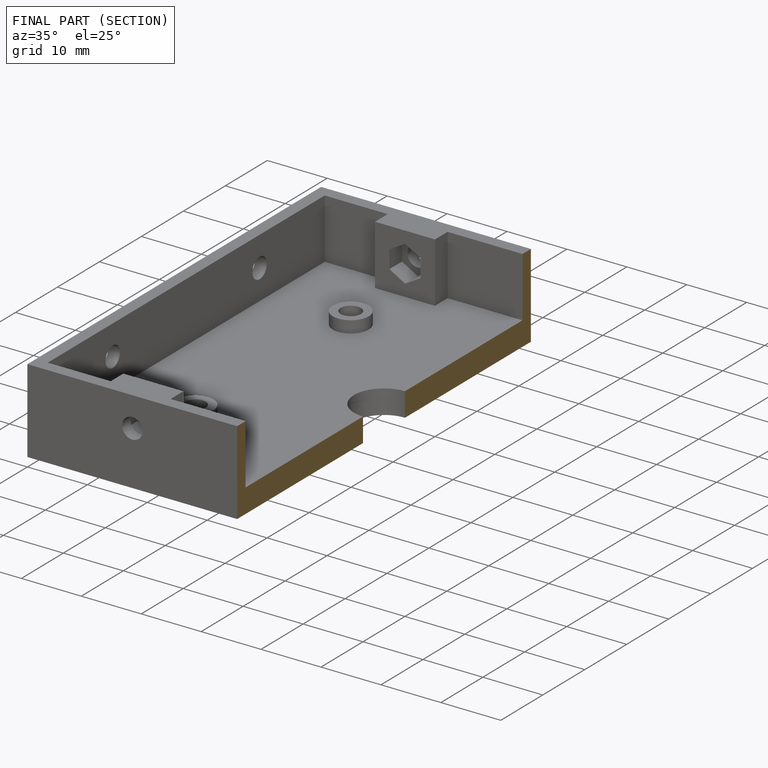
[diagram: finished part — half-section view (interior)]
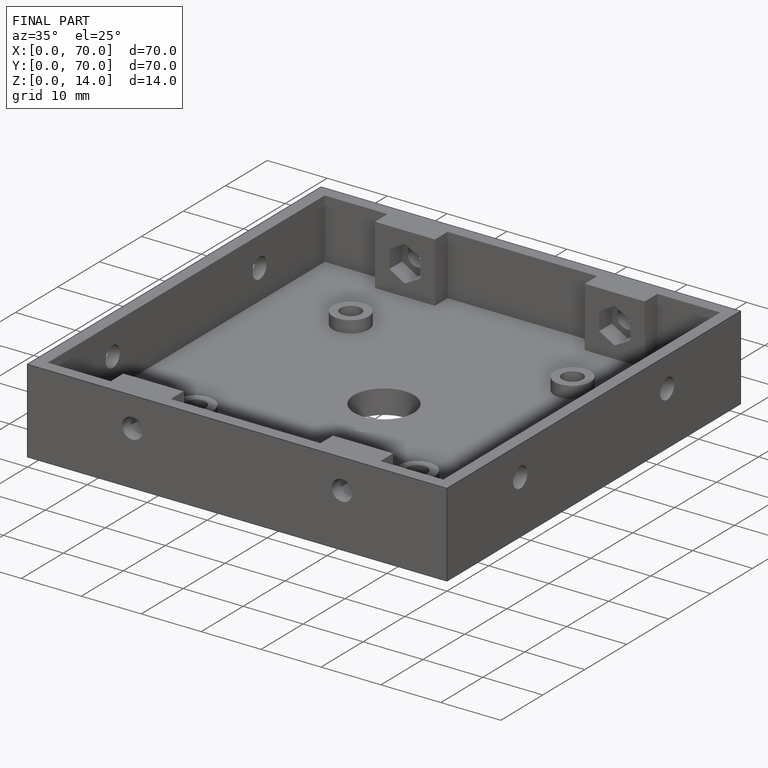
[diagram: finished part — iso view with bounding-box wireframe]
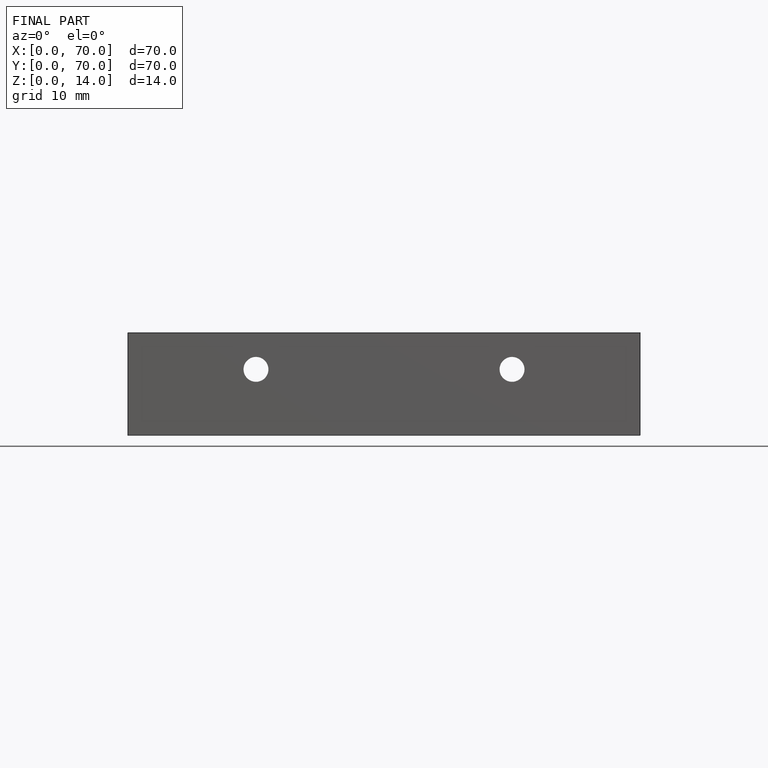
[diagram: finished part — front view with bounding-box wireframe]
